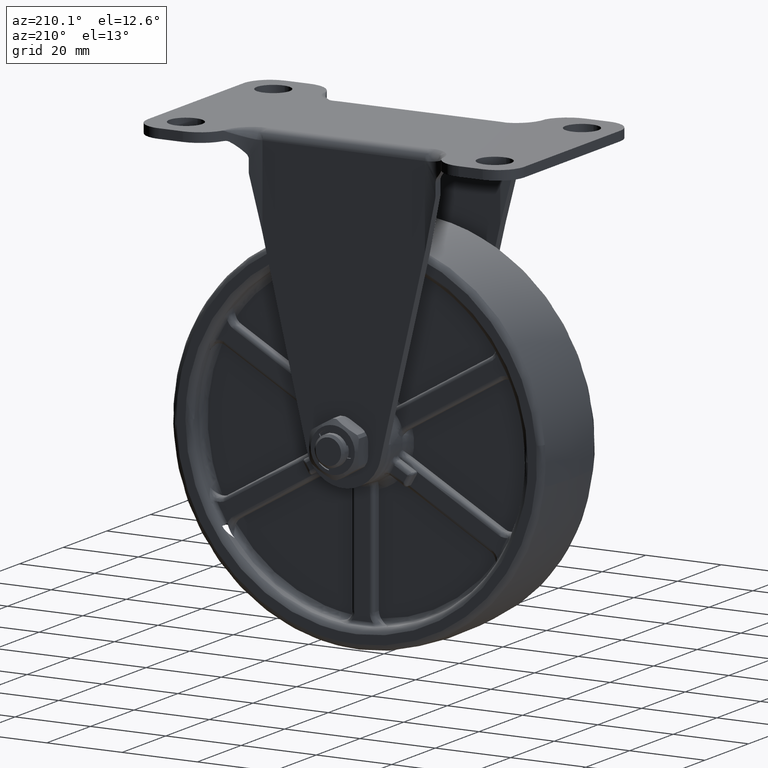
[diagram: clean part render]
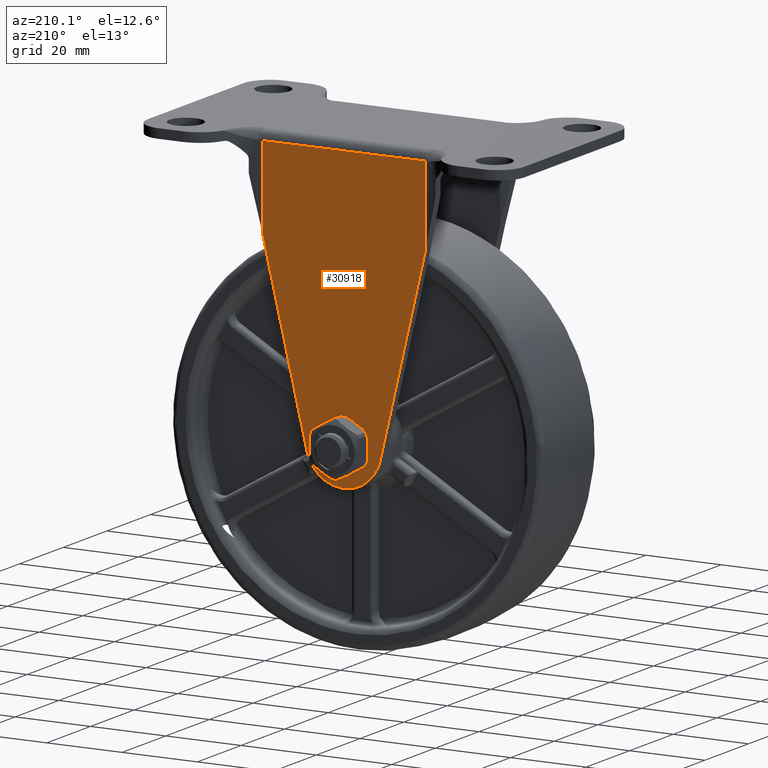
[diagram: same view with one face highlighted and labeled with its STEP entity id]
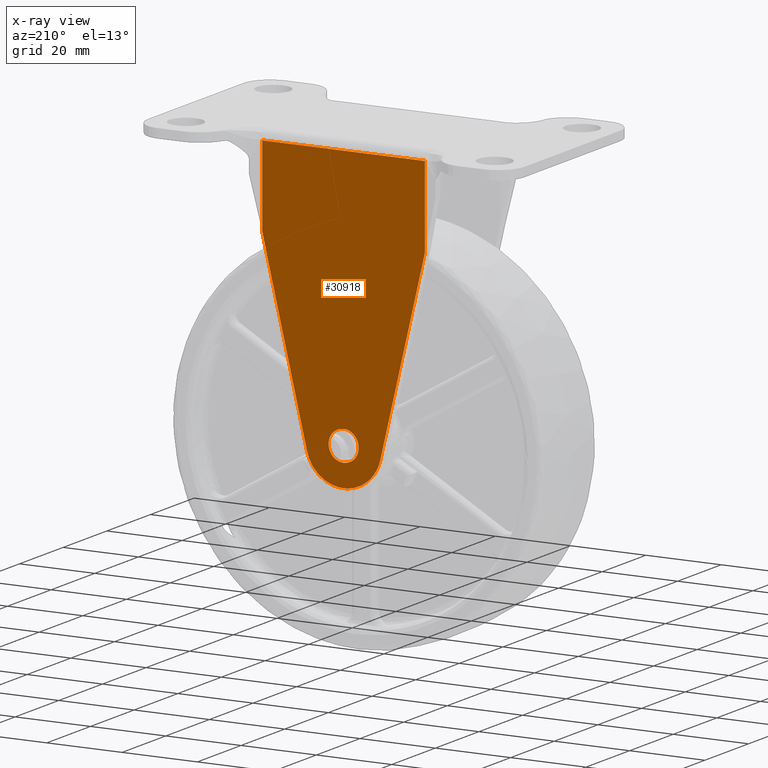
[diagram: x-ray of the same camera — body ghosted, the highlighted face saturated]
A machine part, auxiliary view. The second image highlights one B-rep face of the part: STEP entity #30918.
The next image is the same camera in x-ray: the body ghosted, the highlighted face saturated — about 0% of this face is hidden behind the body in this view.
In plain terms, the highlighted face is a freeform B-spline surface patch.
Its self-contained STEP definition (entity closure, byte-faithful):
#27406=CARTESIAN_POINT('',(-3.987669334917721,18.499980000000001,-0.313836383097842));
#27407=VERTEX_POINT('',#27406);
#27413=CARTESIAN_POINT('',(0.0,18.499980000000001,3.999999999999885));
#27414=VERTEX_POINT('',#27413);
#27415=CARTESIAN_POINT('',(-3.987669334917721,18.499979999999997,-0.313836383097842));
#27416=CARTESIAN_POINT('',(-3.999999999999885,18.499980000000008,-0.157160428218010));
#27417=CARTESIAN_POINT('',(-3.999999999999885,18.499980000000001,0.0));
#27418=CARTESIAN_POINT('',(-3.999999999999885,18.499980000000004,3.999999999999885));
#27419=CARTESIAN_POINT('',(0.0,18.499980000000001,3.999999999999885));
#27427=(BOUNDED_CURVE()B_SPLINE_CURVE(2,(#27415,#27416,#27417,#27418,#27419),.UNSPECIFIED.,.F.,.U.)B_SPLINE_CURVE_WITH_KNOTS((3,2,3),(0.736331300616735,0.750000000000000,1.0),.UNSPECIFIED.)CURVE()GEOMETRIC_REPRESENTATION_ITEM()RATIONAL_B_SPLINE_CURVE((0.969723356138358,0.983986122562568,1.0,0.707106781186548,1.0))REPRESENTATION_ITEM(''));
#27428=EDGE_CURVE('',#27407,#27414,#27427,.T.);
#27430=CARTESIAN_POINT('',(3.987669334917721,18.499980000000001,0.313836383097842));
#27431=VERTEX_POINT('',#27430);
#27432=CARTESIAN_POINT('',(0.0,18.499980000000001,3.999999999999885));
#27433=CARTESIAN_POINT('',(3.697561966285842,18.499979999999994,3.999999999999885));
#27434=CARTESIAN_POINT('',(3.987669334917721,18.499980000000001,0.313836383097842));
#27442=(BOUNDED_CURVE()B_SPLINE_CURVE(2,(#27432,#27433,#27434),.UNSPECIFIED.,.F.,.U.)B_SPLINE_CURVE_WITH_KNOTS((3,3),(0.0,0.236331300616735),.UNSPECIFIED.)CURVE()GEOMETRIC_REPRESENTATION_ITEM()RATIONAL_B_SPLINE_CURVE((1.0,0.723120658623980,0.969723356138357))REPRESENTATION_ITEM(''));
#27443=EDGE_CURVE('',#27414,#27431,#27442,.T.);
#27489=CARTESIAN_POINT('',(0.0,18.499980000000001,-3.999999999999885));
#27490=VERTEX_POINT('',#27489);
#27491=CARTESIAN_POINT('',(3.987669334917721,18.499980000000001,0.313836383097842));
#27492=CARTESIAN_POINT('',(3.999999999999885,18.499979999999997,0.157160428218010));
#27493=CARTESIAN_POINT('',(3.999999999999885,18.499980000000001,0.0));
#27494=CARTESIAN_POINT('',(3.999999999999885,18.499980000000004,-3.999999999999885));
#27495=CARTESIAN_POINT('',(0.0,18.499980000000001,-3.999999999999885));
#27503=(BOUNDED_CURVE()B_SPLINE_CURVE(2,(#27491,#27492,#27493,#27494,#27495),.UNSPECIFIED.,.F.,.U.)B_SPLINE_CURVE_WITH_KNOTS((3,2,3),(0.236331300616735,0.250000000000000,0.500000000000000),.UNSPECIFIED.)CURVE()GEOMETRIC_REPRESENTATION_ITEM()RATIONAL_B_SPLINE_CURVE((0.969723356138357,0.983986122562568,1.0,0.707106781186548,1.0))REPRESENTATION_ITEM(''));
#27504=EDGE_CURVE('',#27431,#27490,#27503,.T.);
#27506=CARTESIAN_POINT('',(0.0,18.499980000000001,-3.999999999999885));
#27507=CARTESIAN_POINT('',(-3.697561966285839,18.499980000000004,-3.999999999999885));
#27508=CARTESIAN_POINT('',(-3.987669334917721,18.499979999999997,-0.313836383097842));
#27516=(BOUNDED_CURVE()B_SPLINE_CURVE(2,(#27506,#27507,#27508),.UNSPECIFIED.,.F.,.U.)B_SPLINE_CURVE_WITH_KNOTS((3,3),(0.500000000000000,0.736331300616734),.UNSPECIFIED.)CURVE()GEOMETRIC_REPRESENTATION_ITEM()RATIONAL_B_SPLINE_CURVE((1.0,0.723120658623980,0.969723356138357))REPRESENTATION_ITEM(''));
#27517=EDGE_CURVE('',#27490,#27407,#27516,.T.);
#29464=CARTESIAN_POINT('',(-21.590023477556901,18.499980000000001,69.500000000000000));
#29465=VERTEX_POINT('',#29464);
#29541=CARTESIAN_POINT('',(21.590023477556802,18.499980000000001,69.500000000000000));
#29542=VERTEX_POINT('',#29541);
#29556=CARTESIAN_POINT('',(-21.590023477556901,18.499980000000001,69.500000000000000));
#29557=CARTESIAN_POINT('',(21.590023477556802,18.499980000000001,69.500000000000000));
#29558=QUASI_UNIFORM_CURVE('',1,(#29556,#29557),.UNSPECIFIED.,.F.,.U.);
#29559=EDGE_CURVE('',#29465,#29542,#29558,.T.);
#30386=CARTESIAN_POINT('',(21.590023477556802,18.499980000000001,47.908597396605302));
#30387=VERTEX_POINT('',#30386);
#30404=CARTESIAN_POINT('',(9.732252464196970,18.499980000000001,-2.298527566315305));
#30405=VERTEX_POINT('',#30404);
#30411=CARTESIAN_POINT('',(21.590023477556802,18.499980000000001,47.908597396605302));
#30412=CARTESIAN_POINT('',(9.732252464196970,18.499980000000001,-2.298527566315305));
#30413=QUASI_UNIFORM_CURVE('',1,(#30411,#30412),.UNSPECIFIED.,.F.,.U.);
#30414=EDGE_CURVE('',#30387,#30405,#30413,.T.);
#30828=CARTESIAN_POINT('',(-21.590023477556901,18.499980000000001,47.908597396605707));
#30829=VERTEX_POINT('',#30828);
#30867=CARTESIAN_POINT('',(-21.590023477556901,18.499980000000001,47.908597396605707));
#30868=CARTESIAN_POINT('',(-21.590023477556901,18.499980000000001,69.500000000000000));
#30869=QUASI_UNIFORM_CURVE('',1,(#30867,#30868),.UNSPECIFIED.,.F.,.U.);
#30870=EDGE_CURVE('',#30829,#29465,#30869,.T.);
#30875=CARTESIAN_POINT('',(-23.746866333930139,18.499980000000001,-13.971017308845139));
#30876=CARTESIAN_POINT('',(-23.746866333930139,18.499980000000001,73.471026619703366));
#30877=CARTESIAN_POINT('',(23.746867878168850,18.499980000000001,-13.971017308845139));
#30878=CARTESIAN_POINT('',(23.746867878168850,18.499980000000001,73.471026619703366));
#30879=B_SPLINE_SURFACE_WITH_KNOTS('',1,1,((#30875,#30877),(#30876,#30878)),.UNSPECIFIED.,.F.,.F.,.U.,(2,2),(2,2),(0.0,87.442043928548514),(0.0,47.493734212098992),.UNSPECIFIED.);
#30880=ORIENTED_EDGE('',*,*,#30870,.T.);
#30881=ORIENTED_EDGE('',*,*,#29559,.T.);
#30882=CARTESIAN_POINT('',(21.590023477556802,18.499980000000001,47.908597396605302));
#30883=CARTESIAN_POINT('',(21.590023477556802,18.499980000000001,69.500000000000000));
#30884=QUASI_UNIFORM_CURVE('',1,(#30882,#30883),.UNSPECIFIED.,.F.,.U.);
#30885=EDGE_CURVE('',#30387,#29542,#30884,.T.);
#30886=ORIENTED_EDGE('',*,*,#30885,.F.);
#30887=ORIENTED_EDGE('',*,*,#30414,.T.);
#30888=CARTESIAN_POINT('',(-9.732252464196970,18.499980000000001,-2.298527566315295));
#30889=VERTEX_POINT('',#30888);
#30890=CARTESIAN_POINT('',(9.732252464196970,18.499980000000001,-2.298527566315304));
#30891=CARTESIAN_POINT('',(7.913343065765025,18.499979999999997,-9.999992821498069));
#30892=CARTESIAN_POINT('',(0.0,18.499980000000001,-9.999992821498069));
#30893=CARTESIAN_POINT('',(-7.913343065765028,18.499979999999997,-9.999992821498069));
#30894=CARTESIAN_POINT('',(-9.732252464196970,18.499980000000001,-2.298527566315297));
#30902=(BOUNDED_CURVE()B_SPLINE_CURVE(2,(#30890,#30891,#30892,#30893,#30894),.UNSPECIFIED.,.F.,.U.)B_SPLINE_CURVE_WITH_KNOTS((3,2,3),(0.0,0.500000000000000,1.0),.UNSPECIFIED.)CURVE()GEOMETRIC_REPRESENTATION_ITEM()RATIONAL_B_SPLINE_CURVE((1.0,0.784172645047544,1.0,0.784172645047544,1.0))REPRESENTATION_ITEM(''));
#30903=EDGE_CURVE('',#30405,#30889,#30902,.T.);
#30904=ORIENTED_EDGE('',*,*,#30903,.T.);
#30905=CARTESIAN_POINT('',(-9.732252464196970,18.499980000000001,-2.298527566315295));
#30906=CARTESIAN_POINT('',(-21.590023477556901,18.499980000000001,47.908597396605707));
#30907=QUASI_UNIFORM_CURVE('',1,(#30905,#30906),.UNSPECIFIED.,.F.,.U.);
#30908=EDGE_CURVE('',#30889,#30829,#30907,.T.);
#30909=ORIENTED_EDGE('',*,*,#30908,.T.);
#30910=EDGE_LOOP('',(#30880,#30881,#30886,#30887,#30904,#30909));
#30911=FACE_OUTER_BOUND('',#30910,.T.);
#30912=ORIENTED_EDGE('',*,*,#27517,.F.);
#30913=ORIENTED_EDGE('',*,*,#27504,.F.);
#30914=ORIENTED_EDGE('',*,*,#27443,.F.);
#30915=ORIENTED_EDGE('',*,*,#27428,.F.);
#30916=EDGE_LOOP('',(#30912,#30913,#30914,#30915));
#30917=FACE_BOUND('',#30916,.T.);
#30918=ADVANCED_FACE('',(#30911,#30917),#30879,.T.);